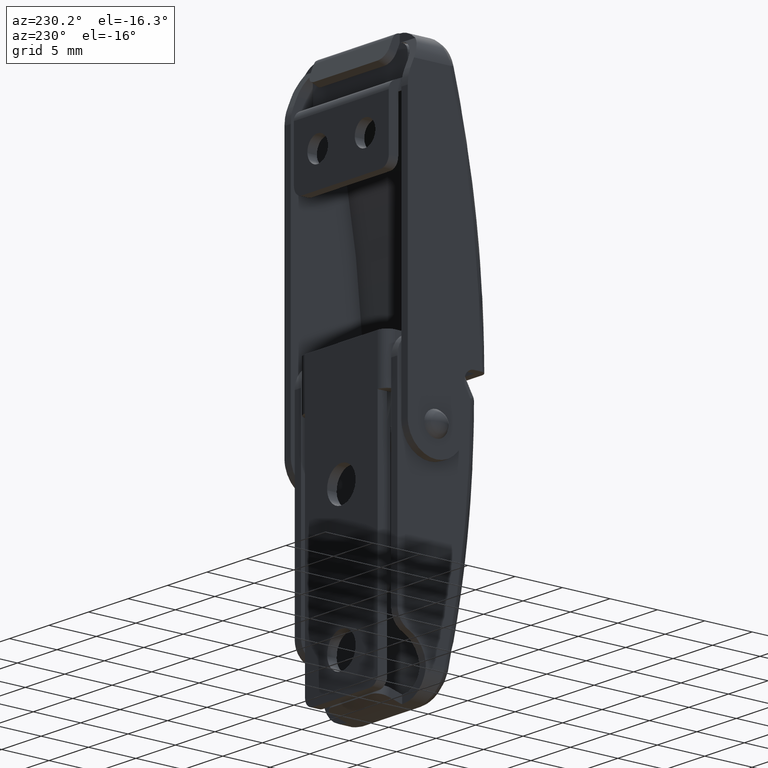
[diagram: clean part render]
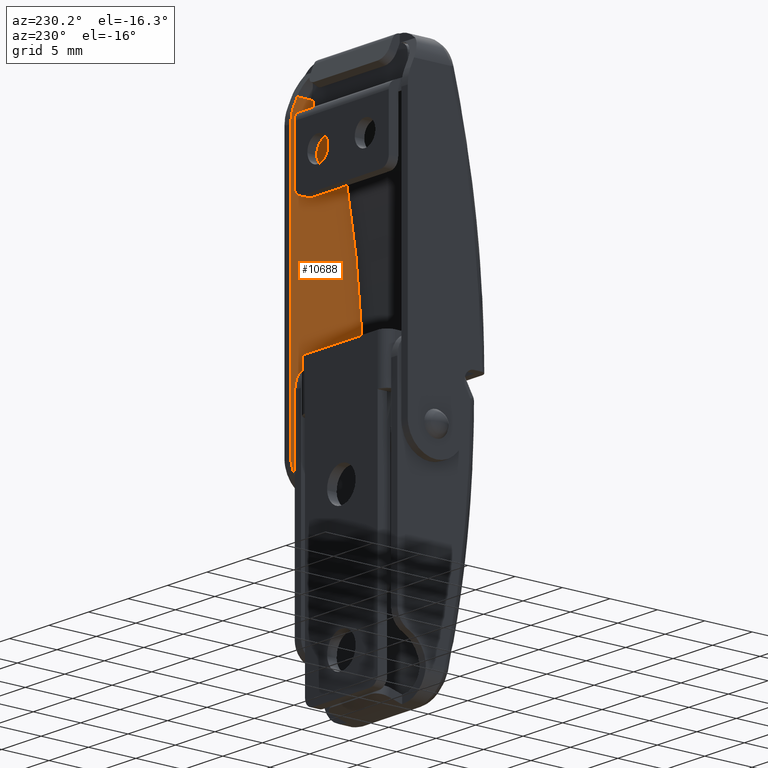
[diagram: same view with one face highlighted and labeled with its STEP entity id]
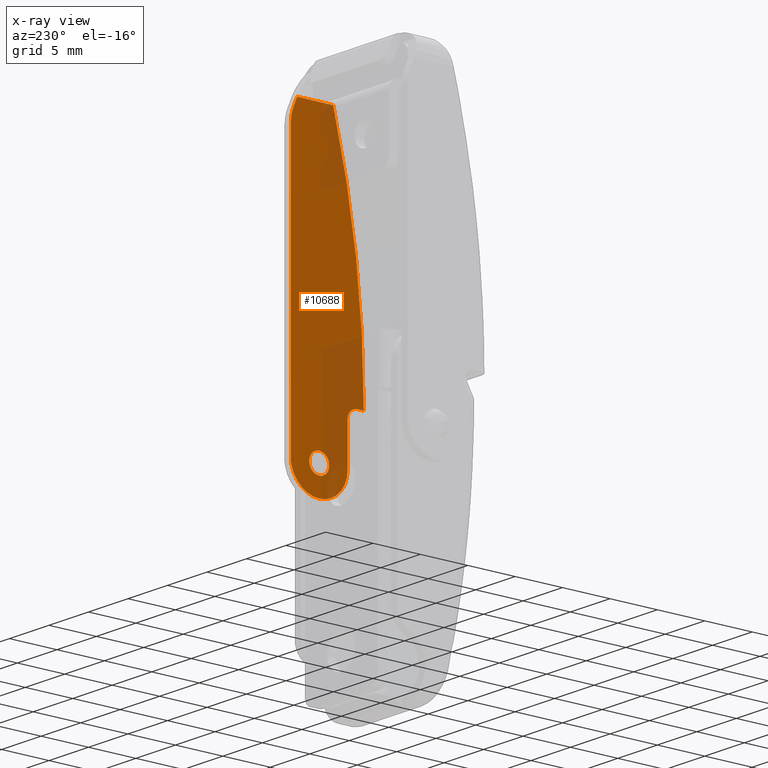
[diagram: x-ray of the same camera — body ghosted, the highlighted face saturated]
A machine part, auxiliary view. The second image highlights one B-rep face of the part: STEP entity #10688.
The next image is the same camera in x-ray: the body ghosted, the highlighted face saturated — about 26% of this face is hidden behind the body in this view.
In plain terms, the highlighted face is a freeform B-spline surface patch.
Its self-contained STEP definition (entity closure, byte-faithful):
#9129=CARTESIAN_POINT('',(7.000000000000120,-4.546763200417955,4.082382050523185));
#9130=VERTEX_POINT('',#9129);
#9136=CARTESIAN_POINT('',(7.000000000000120,-3.499999999998890,5.049999999999799));
#9137=VERTEX_POINT('',#9136);
#9138=CARTESIAN_POINT('',(7.000000000000120,-3.499999999998890,5.049999999999799));
#9139=CARTESIAN_POINT('',(7.000000000000121,-4.470610016222991,5.049999999999799));
#9140=CARTESIAN_POINT('',(7.000000000000120,-4.546763200417956,4.082382050523186));
#9148=(BOUNDED_CURVE()B_SPLINE_CURVE(2,(#9138,#9139,#9140),.UNSPECIFIED.,.F.,.U.)B_SPLINE_CURVE_WITH_KNOTS((3,3),(0.0,0.236331300629771),.UNSPECIFIED.)CURVE()GEOMETRIC_REPRESENTATION_ITEM()RATIONAL_B_SPLINE_CURVE((1.0,0.723120658608707,0.969723356165563))REPRESENTATION_ITEM(''));
#9149=EDGE_CURVE('',#9137,#9130,#9148,.T.);
#9151=CARTESIAN_POINT('',(7.000000000000119,-2.453236799579826,3.917617949476415));
#9152=VERTEX_POINT('',#9151);
#9153=CARTESIAN_POINT('',(7.000000000000119,-2.453236799579826,3.917617949476414));
#9154=CARTESIAN_POINT('',(7.000000000000121,-2.449999999998890,3.958745387632558));
#9155=CARTESIAN_POINT('',(7.000000000000120,-2.449999999998890,3.999999999999800));
#9156=CARTESIAN_POINT('',(7.000000000000120,-2.449999999998890,5.049999999999799));
#9157=CARTESIAN_POINT('',(7.000000000000120,-3.499999999998890,5.049999999999799));
#9165=(BOUNDED_CURVE()B_SPLINE_CURVE(2,(#9153,#9154,#9155,#9156,#9157),.UNSPECIFIED.,.F.,.U.)B_SPLINE_CURVE_WITH_KNOTS((3,2,3),(0.736331300629771,0.750000000000000,1.0),.UNSPECIFIED.)CURVE()GEOMETRIC_REPRESENTATION_ITEM()RATIONAL_B_SPLINE_CURVE((0.969723356165563,0.983986122577841,1.0,0.707106781186548,1.0))REPRESENTATION_ITEM(''));
#9166=EDGE_CURVE('',#9152,#9137,#9165,.T.);
#9242=CARTESIAN_POINT('',(7.000000000000120,-3.499999999998890,2.949999999999800));
#9243=VERTEX_POINT('',#9242);
#9244=CARTESIAN_POINT('',(7.000000000000120,-3.499999999998890,2.949999999999800));
#9245=CARTESIAN_POINT('',(7.000000000000121,-2.529389983774790,2.949999999999800));
#9246=CARTESIAN_POINT('',(7.000000000000119,-2.453236799579826,3.917617949476415));
#9254=(BOUNDED_CURVE()B_SPLINE_CURVE(2,(#9244,#9245,#9246),.UNSPECIFIED.,.F.,.U.)B_SPLINE_CURVE_WITH_KNOTS((3,3),(0.500000000000000,0.736331300629771),.UNSPECIFIED.)CURVE()GEOMETRIC_REPRESENTATION_ITEM()RATIONAL_B_SPLINE_CURVE((1.0,0.723120658608707,0.969723356165563))REPRESENTATION_ITEM(''));
#9255=EDGE_CURVE('',#9243,#9152,#9254,.T.);
#9257=CARTESIAN_POINT('',(7.000000000000120,-4.546763200417955,4.082382050523185));
#9258=CARTESIAN_POINT('',(7.000000000000120,-4.549999999998890,4.041254612367043));
#9259=CARTESIAN_POINT('',(7.000000000000120,-4.549999999998890,3.999999999999800));
#9260=CARTESIAN_POINT('',(7.000000000000120,-4.549999999998889,2.949999999999800));
#9261=CARTESIAN_POINT('',(7.000000000000120,-3.499999999998890,2.949999999999800));
#9269=(BOUNDED_CURVE()B_SPLINE_CURVE(2,(#9257,#9258,#9259,#9260,#9261),.UNSPECIFIED.,.F.,.U.)B_SPLINE_CURVE_WITH_KNOTS((3,2,3),(0.236331300629771,0.250000000000000,0.500000000000000),.UNSPECIFIED.)CURVE()GEOMETRIC_REPRESENTATION_ITEM()RATIONAL_B_SPLINE_CURVE((0.969723356165563,0.983986122577841,1.0,0.707106781186548,1.0))REPRESENTATION_ITEM(''));
#9270=EDGE_CURVE('',#9130,#9243,#9269,.T.);
#10344=CARTESIAN_POINT('',(7.000000000000120,-4.972723429691500,34.500000000003247));
#10345=VERTEX_POINT('',#10344);
#10381=CARTESIAN_POINT('',(7.000000000000120,-1.171572875251376,34.500000000003553));
#10382=VERTEX_POINT('',#10381);
#10396=CARTESIAN_POINT('',(7.000000000000120,-4.972723429691500,34.500000000003247));
#10397=CARTESIAN_POINT('',(7.000000000000120,-1.171572875251376,34.500000000003553));
#10398=QUASI_UNIFORM_CURVE('',1,(#10396,#10397),.UNSPECIFIED.,.F.,.U.);
#10399=EDGE_CURVE('',#10345,#10382,#10398,.T.);
#10586=CARTESIAN_POINT('',(7.000000000000100,-8.584614840512934,36.173324935074227));
#10587=CARTESIAN_POINT('',(7.000000000000100,-0.115384815216076,36.173324935074227));
#10588=CARTESIAN_POINT('',(7.000000000000100,-8.584614840512934,-0.673325833610831));
#10589=CARTESIAN_POINT('',(7.000000000000100,-0.115384815216076,-0.673325833610831));
#10590=B_SPLINE_SURFACE_WITH_KNOTS('',1,1,((#10586,#10588),(#10587,#10589)),.UNSPECIFIED.,.F.,.F.,.U.,(2,2),(2,2),(0.0,8.469230025296859),(0.0,36.846650768685059),.UNSPECIFIED.);
#10591=CARTESIAN_POINT('',(7.000000000000100,-8.199999999998640,9.299999999999800));
#10592=VERTEX_POINT('',#10591);
#10593=CARTESIAN_POINT('',(7.000000000000120,-4.972723429691476,34.500000000003212));
#10594=CARTESIAN_POINT('',(7.000000000000120,-8.199999999998598,22.106653056772373));
#10595=CARTESIAN_POINT('',(7.000000000000100,-8.199999999998640,9.299999999999800));
#10603=(BOUNDED_CURVE()B_SPLINE_CURVE(2,(#10593,#10594,#10595),.UNSPECIFIED.,.F.,.U.)CURVE()GEOMETRIC_REPRESENTATION_ITEM()QUASI_UNIFORM_CURVE()RATIONAL_B_SPLINE_CURVE((1.0,0.991898995436766,1.0))REPRESENTATION_ITEM(''));
#10604=EDGE_CURVE('',#10345,#10592,#10603,.T.);
#10605=ORIENTED_EDGE('',*,*,#10604,.F.);
#10606=ORIENTED_EDGE('',*,*,#10399,.T.);
#10607=CARTESIAN_POINT('',(7.000000000000120,-0.804481869902105,33.613763916264212));
#10608=VERTEX_POINT('',#10607);
#10609=CARTESIAN_POINT('',(7.000000000000120,-1.171572875251376,34.500000000003553));
#10610=CARTESIAN_POINT('',(7.000000000000120,-0.804481869902105,33.613763916264212));
#10611=QUASI_UNIFORM_CURVE('',1,(#10609,#10610),.UNSPECIFIED.,.F.,.U.);
#10612=EDGE_CURVE('',#10382,#10608,#10611,.T.);
#10613=ORIENTED_EDGE('',*,*,#10612,.T.);
#10614=CARTESIAN_POINT('',(7.000000000000120,-0.499999999947192,32.083030186803697));
#10615=VERTEX_POINT('',#10614);
#10616=CARTESIAN_POINT('',(7.000000000000120,-0.499999999947189,32.083030186803697));
#10617=CARTESIAN_POINT('',(7.000000000000120,-0.499999999947189,32.878679656322412));
#10618=CARTESIAN_POINT('',(7.000000000000120,-0.804481869902100,33.613763916264212));
#10626=(BOUNDED_CURVE()B_SPLINE_CURVE(2,(#10616,#10617,#10618),.UNSPECIFIED.,.F.,.U.)CURVE()GEOMETRIC_REPRESENTATION_ITEM()QUASI_UNIFORM_CURVE()RATIONAL_B_SPLINE_CURVE((1.0,0.980785280403227,1.0))REPRESENTATION_ITEM(''));
#10627=EDGE_CURVE('',#10615,#10608,#10626,.T.);
#10628=ORIENTED_EDGE('',*,*,#10627,.F.);
#10629=CARTESIAN_POINT('',(7.000000000000120,-0.499999999997299,3.999999999994630));
#10630=VERTEX_POINT('',#10629);
#10631=CARTESIAN_POINT('',(7.000000000000120,-0.499999999947192,32.083030186803697));
#10632=CARTESIAN_POINT('',(7.000000000000120,-0.499999999997299,3.999999999994630));
#10633=QUASI_UNIFORM_CURVE('',1,(#10631,#10632),.UNSPECIFIED.,.F.,.U.);
#10634=EDGE_CURVE('',#10615,#10630,#10633,.T.);
#10635=ORIENTED_EDGE('',*,*,#10634,.T.);
#10636=CARTESIAN_POINT('',(7.000000000000120,-6.499999999998890,3.999999999999800));
#10637=VERTEX_POINT('',#10636);
#10638=CARTESIAN_POINT('',(7.000000000000120,-6.499999999998891,3.999999999999800));
#10639=CARTESIAN_POINT('',(7.000000000000122,-6.499999999998892,1.000000000002385));
#10640=CARTESIAN_POINT('',(7.000000000000120,-3.500000000001475,0.999999999999800));
#10641=CARTESIAN_POINT('',(7.000000000000122,-0.500000000004060,0.999999999997214));
#10642=CARTESIAN_POINT('',(7.000000000000120,-0.499999999997299,3.999999999994630));
#10650=(BOUNDED_CURVE()B_SPLINE_CURVE(2,(#10638,#10639,#10640,#10641,#10642),.UNSPECIFIED.,.F.,.U.)B_SPLINE_CURVE_WITH_KNOTS((3,2,3),(0.0,0.500000000000000,1.0),.UNSPECIFIED.)CURVE()GEOMETRIC_REPRESENTATION_ITEM()RATIONAL_B_SPLINE_CURVE((1.0,0.707106781186852,1.0,0.707106781186852,1.0))REPRESENTATION_ITEM(''));
#10651=EDGE_CURVE('',#10637,#10630,#10650,.T.);
#10652=ORIENTED_EDGE('',*,*,#10651,.F.);
#10653=CARTESIAN_POINT('',(7.000000000000120,-6.499999999999119,8.300000000000001));
#10654=VERTEX_POINT('',#10653);
#10655=CARTESIAN_POINT('',(7.000000000000120,-6.499999999998890,3.999999999999800));
#10656=CARTESIAN_POINT('',(7.000000000000120,-6.499999999999119,8.300000000000001));
#10657=QUASI_UNIFORM_CURVE('',1,(#10655,#10656),.UNSPECIFIED.,.F.,.U.);
#10658=EDGE_CURVE('',#10637,#10654,#10657,.T.);
#10659=ORIENTED_EDGE('',*,*,#10658,.T.);
#10660=CARTESIAN_POINT('',(7.000000000000120,-7.499999999996899,9.299999999999999));
#10661=VERTEX_POINT('',#10660);
#10662=CARTESIAN_POINT('',(7.000000000000120,-6.499999999999119,8.300000000000001));
#10663=CARTESIAN_POINT('',(7.000000000000120,-6.499999999996899,9.299999999999999));
#10664=CARTESIAN_POINT('',(7.000000000000120,-7.499999999996899,9.299999999999999));
#10672=(BOUNDED_CURVE()B_SPLINE_CURVE(2,(#10662,#10663,#10664),.UNSPECIFIED.,.F.,.U.)CURVE()GEOMETRIC_REPRESENTATION_ITEM()QUASI_UNIFORM_CURVE()RATIONAL_B_SPLINE_CURVE((1.0,0.707106781186548,1.0))REPRESENTATION_ITEM(''));
#10673=EDGE_CURVE('',#10654,#10661,#10672,.T.);
#10674=ORIENTED_EDGE('',*,*,#10673,.T.);
#10675=CARTESIAN_POINT('',(7.000000000000120,-7.499999999996899,9.299999999999999));
#10676=CARTESIAN_POINT('',(7.000000000000100,-8.199999999998640,9.299999999999800));
#10677=QUASI_UNIFORM_CURVE('',1,(#10675,#10676),.UNSPECIFIED.,.F.,.U.);
#10678=EDGE_CURVE('',#10661,#10592,#10677,.T.);
#10679=ORIENTED_EDGE('',*,*,#10678,.T.);
#10680=EDGE_LOOP('',(#10605,#10606,#10613,#10628,#10635,#10652,#10659,#10674,#10679));
#10681=FACE_OUTER_BOUND('',#10680,.T.);
#10682=ORIENTED_EDGE('',*,*,#9255,.T.);
#10683=ORIENTED_EDGE('',*,*,#9166,.T.);
#10684=ORIENTED_EDGE('',*,*,#9149,.T.);
#10685=ORIENTED_EDGE('',*,*,#9270,.T.);
#10686=EDGE_LOOP('',(#10682,#10683,#10684,#10685));
#10687=FACE_BOUND('',#10686,.T.);
#10688=ADVANCED_FACE('',(#10681,#10687),#10590,.T.);